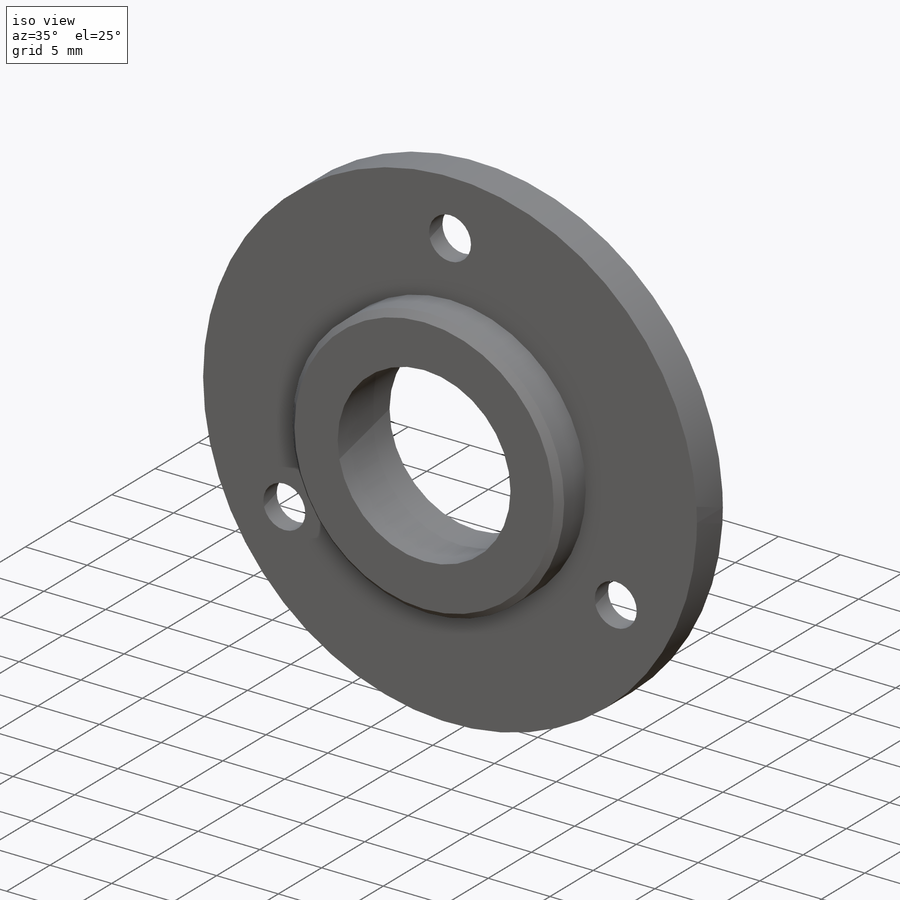
[diagram: iso view]
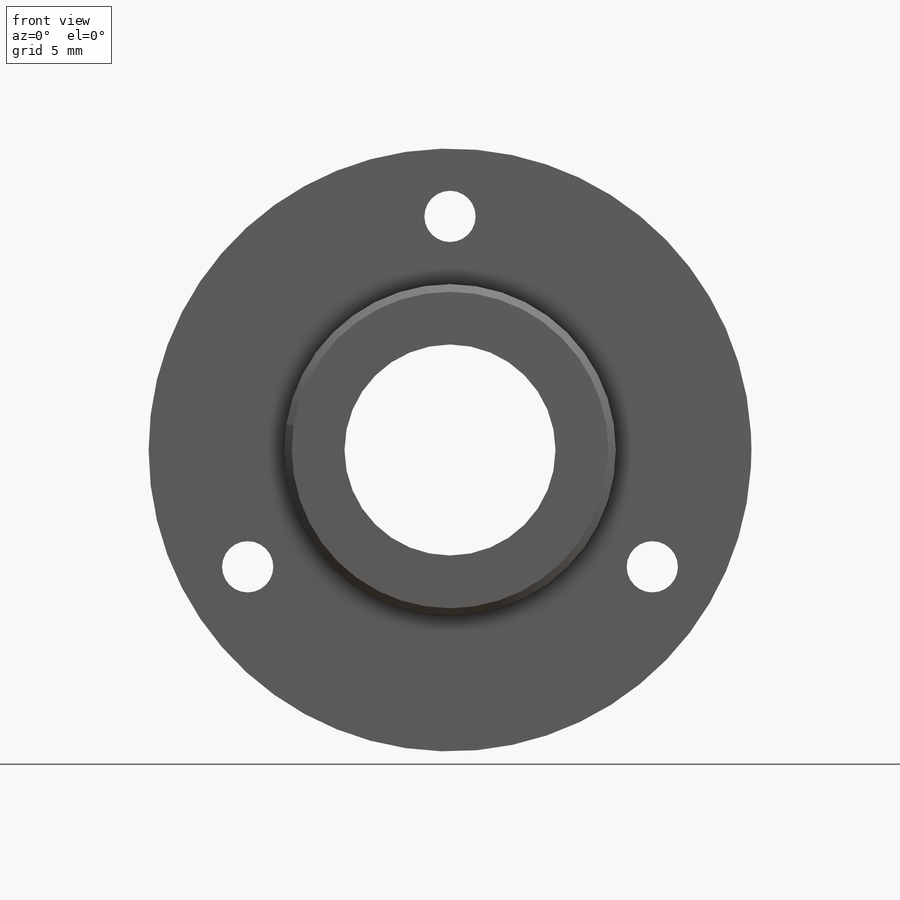
[diagram: front view]
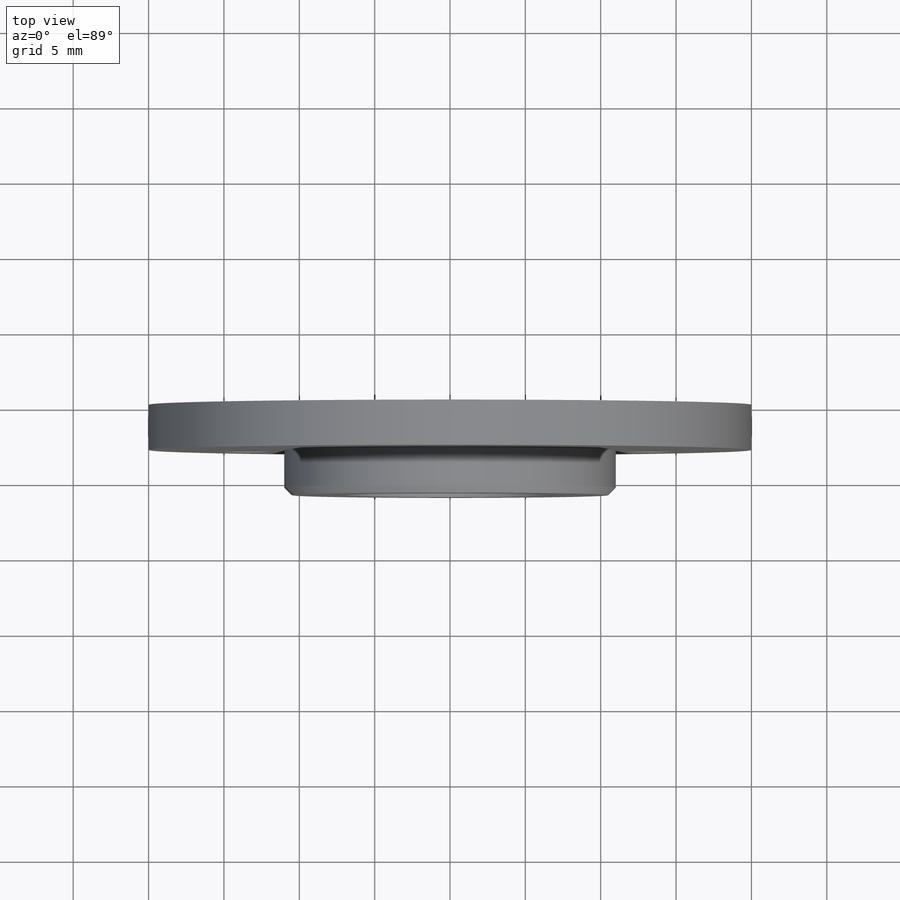
[diagram: top view]
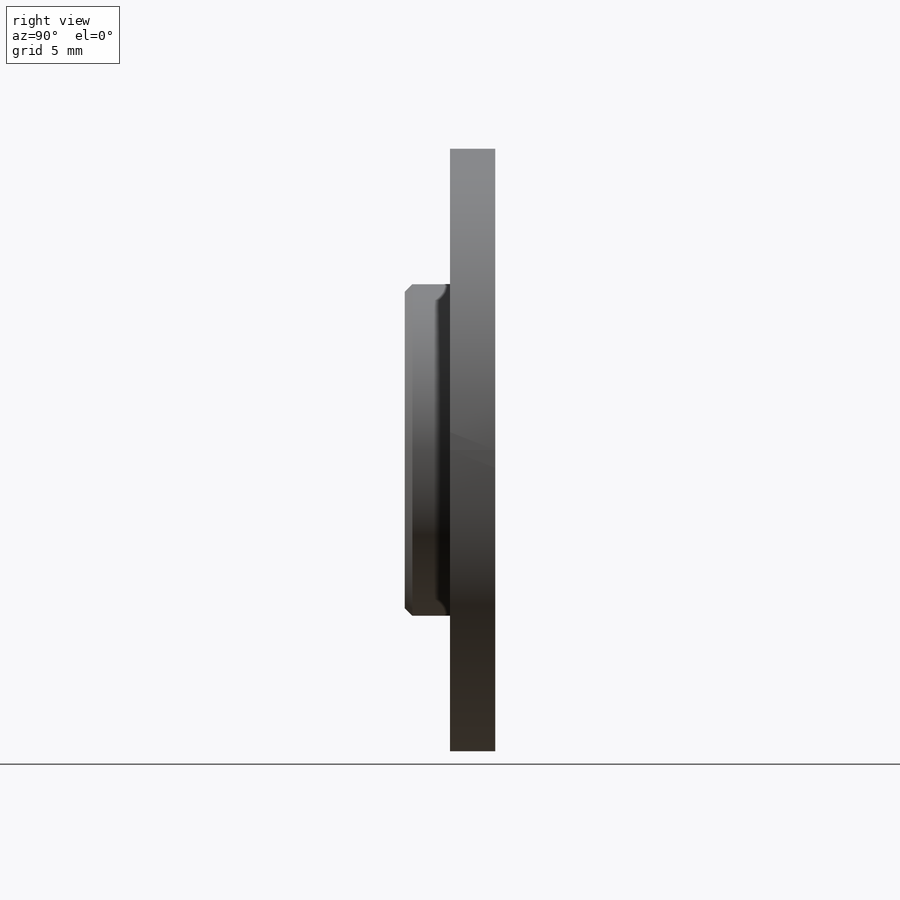
[diagram: right view]
SOLIDWORKS PART (.sldprt)
format: sldprt  version: not decoded by parser v0  size: 208,896 bytes
history: native  units: mm
features: sketch x5, plane x3, extrude x2, material x1, chamfer x1, cut_extrude x1, hole x1, pattern_circular x1 (+13 scaffold rows collapsed)
feature tree (28):
  scaffold x13  (default folders/planes/origin — collapsed)
  material  "3.1325 (EN-AW 2017A)"
  plane  "Plan de face"
  plane  "Plan de dessus"
  plane  "Plan de droite"
  sketch  "Esquisse1"  dims[D1=~36.713189mm]
  extrude  "Boss.-Extru.1"  Depth=3mm
  sketch  "Esquisse2"  dims[D1=~10.494376mm]
  extrude  "Boss.-Extru.2"  Depth=3mm
  chamfer  "Chanfrein1"  Distance=0.5mm Angle=45deg
  sketch  "Esquisse3"  dims[D1=6.0mm]
  cut_extrude  "Enlèv. mat.-Extru.1"  [1 undecoded]
  hole  "Fraisage pour vis à tête fraisée M32"  Diameter=3.4mm Depth=6mm
  sketch  "Esquisse12"  dims[D1=0.0mm D2=15.5mm]
  sketch  "Esquisse11"  dims[hole-wizard template sketch: 55 standard entries collapsed; hole parameters kept: c17.Profondeur du perçage jusqu'au prochain=6.0mm c17.Diamètre du fraisage entrant=6.3mm c17.D4=~3.666174mm c17.Angle du fraisage entrant=90.0deg]
  pattern_circular  "Répétition circulaire1"  Count=3 Angle=360deg
decode coverage: 10 of 11 modeling features carry decoded parameters
note: ~ marks probable driven/reference dimensions
note: 1 parameter value undecoded
note: suppression state not decoded; provenance and decode notes live in map.json
